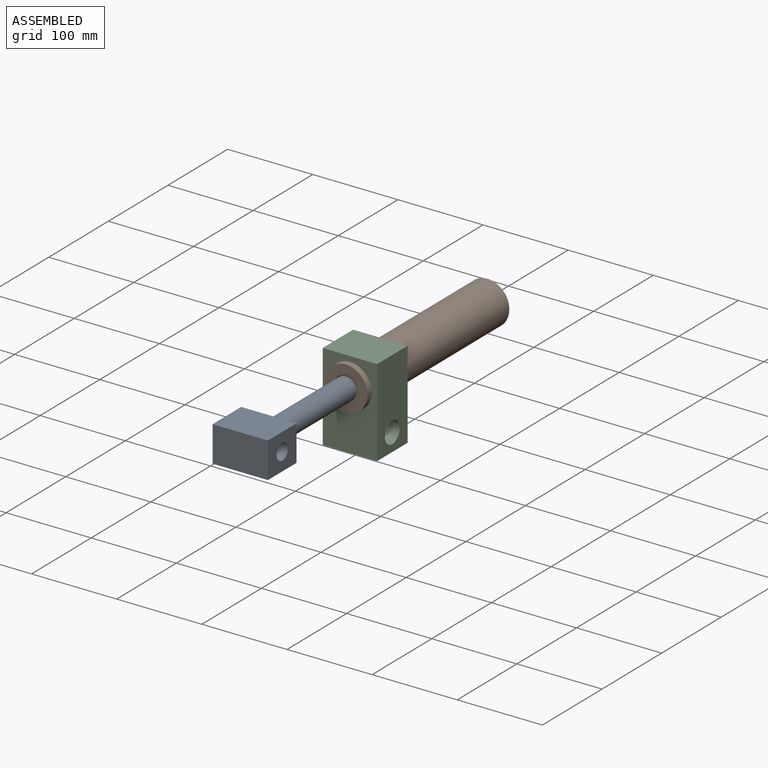
[diagram: assembled view]
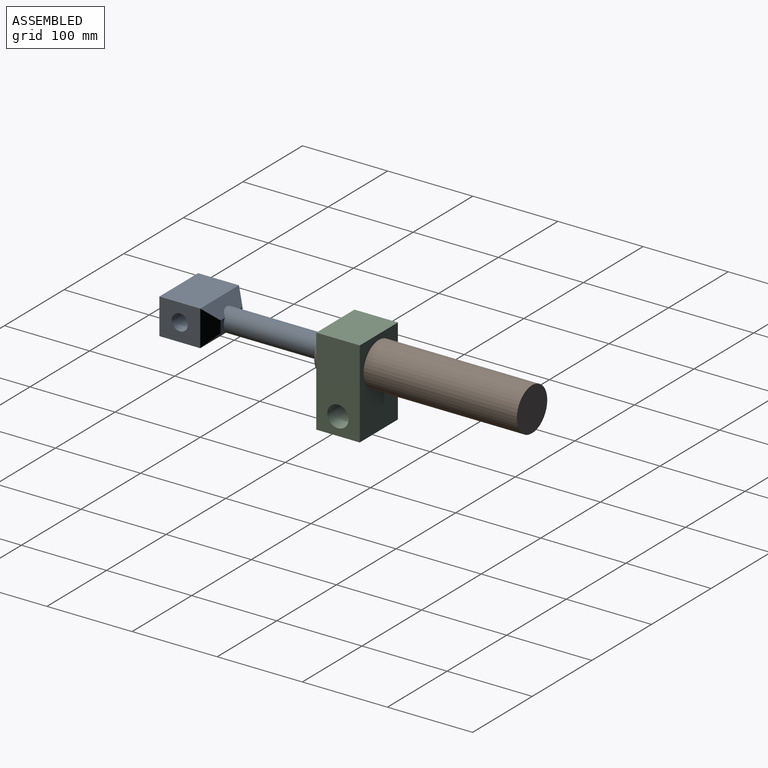
[diagram: assembled view, second angle]
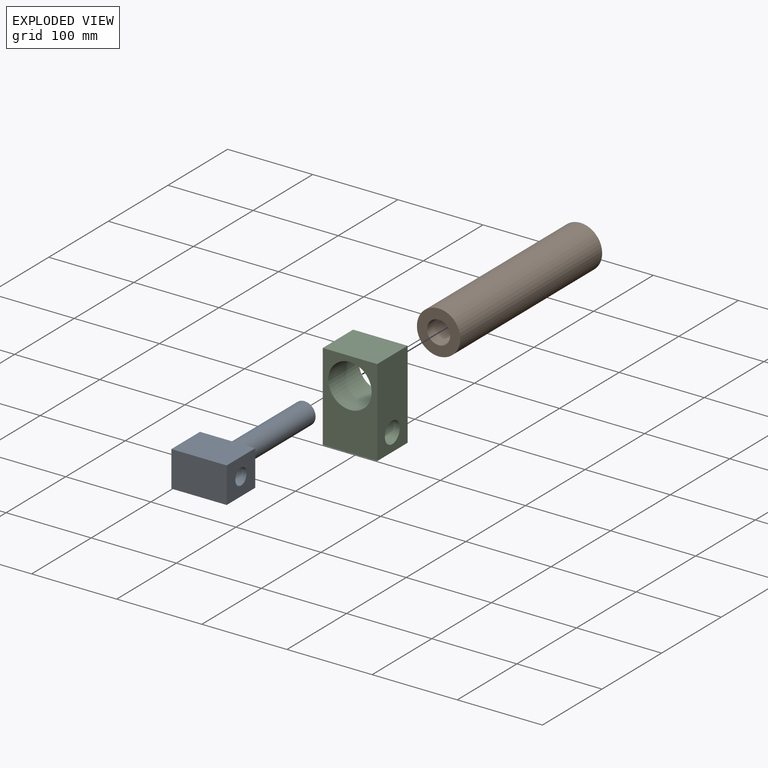
[diagram: exploded view]
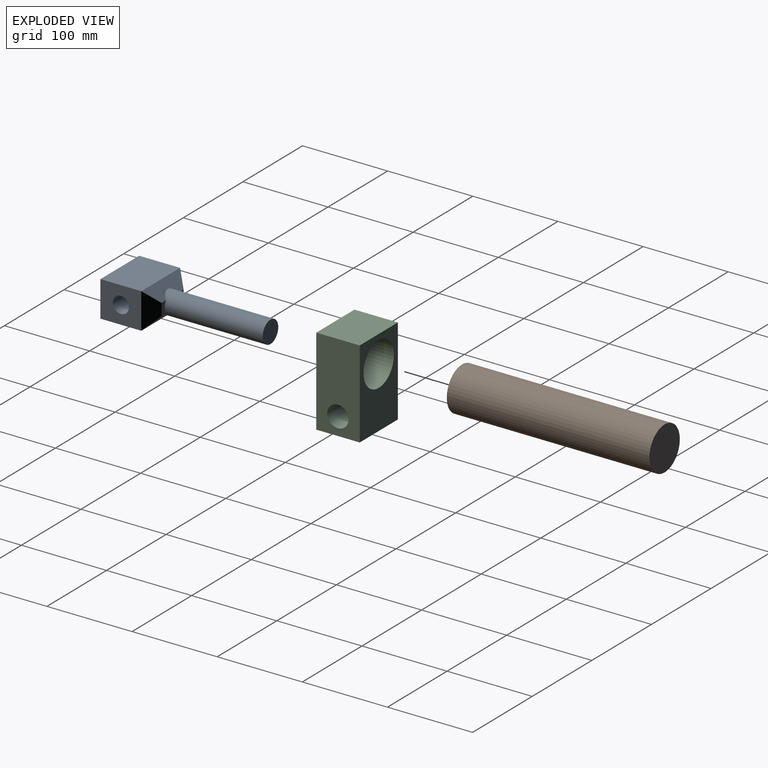
[diagram: exploded view, second angle]
ASSEMBLY  parts=3 mates=2
PART A: 14 faces, bbox 65x177x42 mm
  f0: plane 14x7.55mm, normal (0,1,0), area 86.2mm2, adj f1,f9,f11,f12
  f1: cylinder r=13mm len=121.02mm, axis (0,1,0), area 9598.2mm2, adj f0,f2,f8,f9,f12
  f2: plane 26x26mm, normal (0,1,0), area 530.9mm2, adj f1
  f3: plane 48x42mm, normal (1,0,0), area 1732.5mm2, adj f4,f6,f7,f10,f13
  f4: plane 65x48mm, normal (0,0,1), area 3120mm2, adj f3,f5,f7,f12
  f5: plane 48x42mm, normal (-1,0,0), area 1732.5mm2, adj f4,f6,f7,f11,f13
  f6: plane 65x48mm, normal (0,0,-1), area 3120mm2, adj f3,f5,f7,f9
  f7: plane 65x42mm, normal (0,-1,0), area 2730mm2, adj f3,f4,f5,f6
  f8: plane 14x7.55mm, normal (0,1,0), area 86.2mm2, adj f1,f9,f10,f12
  f9: plane 65x14mm, normal (0,0.71,-0.71), area 878.7mm2, adj f0,f1,f6,f8,f10,f11
  f10: plane 42x14mm, normal (0.71,0.71,0), area 554.4mm2, adj f3,f8,f9,f12
  f11: plane 42x14mm, normal (-0.71,0.71,0), area 554.4mm2, adj f0,f5,f9,f12
  f12: plane 65x14mm, normal (0,0.71,0.71), area 878.7mm2, adj f0,f1,f4,f8,f10,f11
  f13: cylinder r=9.5mm len=65mm, axis (-1,0,0), area 3879.9mm2, adj f3,f5
PART B: 5 faces, bbox 51x238x51 mm
  f0: cylinder r=25.5mm len=238mm, axis (0,-1,0), area 38132.7mm2, adj f1,f2
  f1: plane 51x51mm, normal (0,1,0), area 2042.8mm2, adj f0
  f2: plane 51x51mm, normal (0,-1,0), area 1463.6mm2, adj f0,f3
  f3: cylinder r=13.58mm len=115mm, axis (0,-1,0), area 9811.5mm2, adj f2,f4
  f4: plane 27.16x27.16mm, normal (0,-1,0), area 579.3mm2, adj f3
PART C: 8 faces, bbox 64x51x103 mm
  f0: plane 64x51mm, normal (0,0,-1), area 3264mm2, adj f1,f3,f4,f5
  f1: plane 103x51mm, normal (1,0,0), area 4762.1mm2, adj f0,f2,f4,f5,f7
  f2: plane 64x51mm, normal (0,0,1), area 3264mm2, adj f1,f3,f4,f5
  f3: plane 103x51mm, normal (-1,0,0), area 4762.1mm2, adj f0,f2,f4,f5,f7
  f4: plane 103x64mm, normal (0,-1,0), area 4549.2mm2, adj f0,f1,f2,f3,f6
  f5: plane 103x64mm, normal (0,1,0), area 4549.2mm2, adj f0,f1,f2,f3,f6
  f6: cylinder r=25.5mm len=51mm, axis (0,-1,0), area 8171.3mm2, adj f4,f5
  f7: cylinder r=12.5mm len=64mm, axis (1,0,0), area 5026.5mm2, adj f1,f3
PLACE A t=(101.18,-17.42,151.74)mm
PLACE B t=(101.18,-17.42,151.74)mm
PLACE C t=(101.18,40.58,131.97)mm
MATE slider A.f1 <-> B.f3  axis (0,1,0) through (101.18,-17.42,151.74)mm
MATE slider C.f6 <-> B.f3  axis (0,-1,0) through (101.18,40.58,151.74)mm
